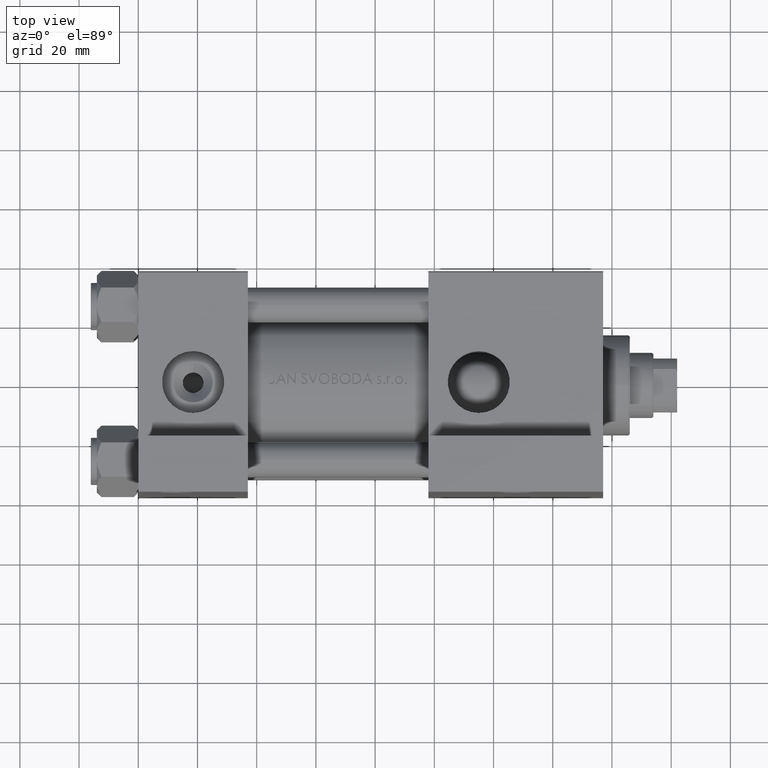
[diagram: clean part render]
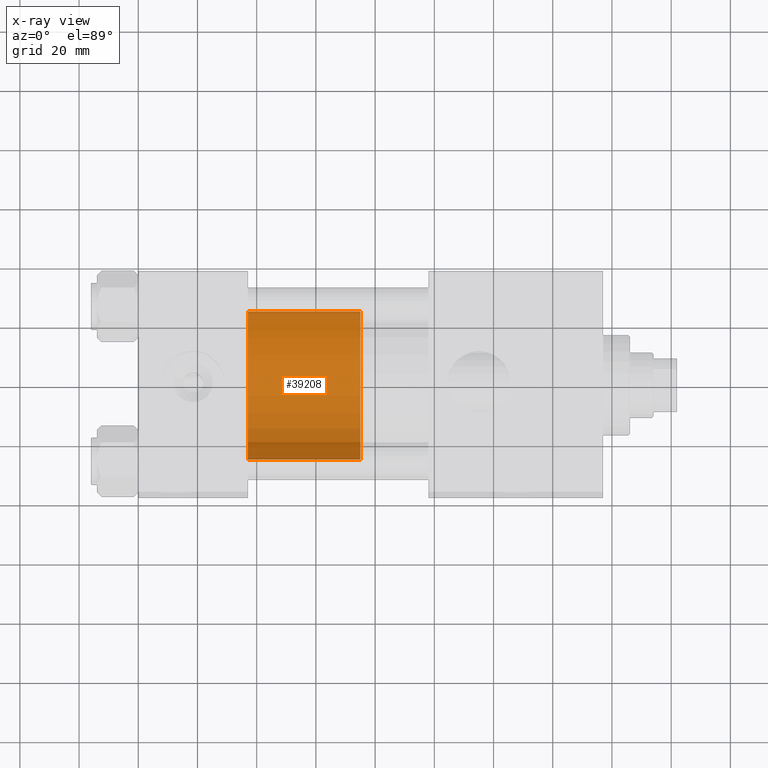
[diagram: x-ray — body ghosted, one internal face saturated and labeled with its STEP entity id]
A machine part, top view, then the same camera in x-ray: the body is ghosted and one INTERNAL B-rep face — a face not visible from any outside direction — is saturated and labeled: STEP entity #39208.
In plain terms, the highlighted cylindrical surface (partial cylindrical patch) has radius 25 mm, axis along (-1, 0, 0).
Its self-contained STEP definition (entity closure, byte-faithful):
#204 = EDGE_CURVE ( 'NONE', #24506, #13377, #38757, .T. ) ;
#1592 = AXIS2_PLACEMENT_3D ( 'NONE', #27902, #19922, #23908 ) ;
#1745 = VERTEX_POINT ( 'NONE', #41351 ) ;
#1925 = CYLINDRICAL_SURFACE ( 'NONE', #2006, 25.00000000000000000 ) ;
#2006 = AXIS2_PLACEMENT_3D ( 'NONE', #43025, #25075, #39514 ) ;
#3462 = LINE ( 'NONE', #13903, #8776 ) ;
#4561 = VERTEX_POINT ( 'NONE', #6843 ) ;
#5399 = AXIS2_PLACEMENT_3D ( 'NONE', #27031, #11336, #30526 ) ;
#6250 = EDGE_CURVE ( 'NONE', #1745, #13377, #39304, .T. ) ;
#6843 = CARTESIAN_POINT ( 'NONE',  ( 25.00000000000000000, 3.061616997868383043E-15, 38.00000000000000000 ) ) ;
#8008 = ORIENTED_EDGE ( 'NONE', *, *, #6250, .F. ) ;
#8098 = EDGE_CURVE ( 'NONE', #4561, #1745, #37339, .T. ) ;
#8351 = ORIENTED_EDGE ( 'NONE', *, *, #8098, .F. ) ;
#8681 = DIRECTION ( 'NONE',  ( -0.000000000000000000, -0.000000000000000000, -1.000000000000000000 ) ) ;
#8776 = VECTOR ( 'NONE', #10158, 1000.000000000000000 ) ;
#10158 = DIRECTION ( 'NONE',  ( -0.000000000000000000, -0.000000000000000000, -1.000000000000000000 ) ) ;
#11336 = DIRECTION ( 'NONE',  ( 0.000000000000000000, 0.000000000000000000, 1.000000000000000000 ) ) ;
#13146 = CARTESIAN_POINT ( 'NONE',  ( -25.00000000000000000, 0.000000000000000000, 38.00000000000000000 ) ) ;
#13377 = VERTEX_POINT ( 'NONE', #48536 ) ;
#13903 = CARTESIAN_POINT ( 'NONE',  ( 25.00000000000000000, 3.061616997868383043E-15, 38.00000000000000000 ) ) ;
#19582 = EDGE_CURVE ( 'NONE', #4561, #24506, #3462, .T. ) ;
#19922 = DIRECTION ( 'NONE',  ( 0.000000000000000000, 0.000000000000000000, 1.000000000000000000 ) ) ;
#20233 = CARTESIAN_POINT ( 'NONE',  ( 25.00000000000000000, 3.061616997868383043E-15, 0.000000000000000000 ) ) ;
#23908 = DIRECTION ( 'NONE',  ( 1.000000000000000000, 0.000000000000000000, 0.000000000000000000 ) ) ;
#24506 = VERTEX_POINT ( 'NONE', #20233 ) ;
#25075 = DIRECTION ( 'NONE',  ( -0.000000000000000000, -0.000000000000000000, -1.000000000000000000 ) ) ;
#27031 = CARTESIAN_POINT ( 'NONE',  ( 0.000000000000000000, 0.000000000000000000, 0.000000000000000000 ) ) ;
#27902 = CARTESIAN_POINT ( 'NONE',  ( 0.000000000000000000, 0.000000000000000000, 38.00000000000000000 ) ) ;
#28692 = VECTOR ( 'NONE', #8681, 1000.000000000000000 ) ;
#30526 = DIRECTION ( 'NONE',  ( 1.000000000000000000, 0.000000000000000000, 0.000000000000000000 ) ) ;
#32064 = FACE_OUTER_BOUND ( 'NONE', #49167, .T. ) ;
#33197 = ORIENTED_EDGE ( 'NONE', *, *, #19582, .T. ) ;
#37339 = CIRCLE ( 'NONE', #1592, 25.00000000000000000 ) ;
#38757 = CIRCLE ( 'NONE', #5399, 25.00000000000000000 ) ;
#39208 = ADVANCED_FACE ( 'NONE', ( #32064 ), #1925, .T. ) ;
#39304 = LINE ( 'NONE', #13146, #28692 ) ;
#39514 = DIRECTION ( 'NONE',  ( -1.000000000000000000, 0.000000000000000000, 0.000000000000000000 ) ) ;
#39539 = ORIENTED_EDGE ( 'NONE', *, *, #204, .T. ) ;
#41351 = CARTESIAN_POINT ( 'NONE',  ( -25.00000000000000000, 0.000000000000000000, 38.00000000000000000 ) ) ;
#43025 = CARTESIAN_POINT ( 'NONE',  ( 0.000000000000000000, 0.000000000000000000, 38.00000000000000000 ) ) ;
#48536 = CARTESIAN_POINT ( 'NONE',  ( -25.00000000000000000, 0.000000000000000000, 0.000000000000000000 ) ) ;
#49167 = EDGE_LOOP ( 'NONE', ( #8351, #33197, #39539, #8008 ) ) ;